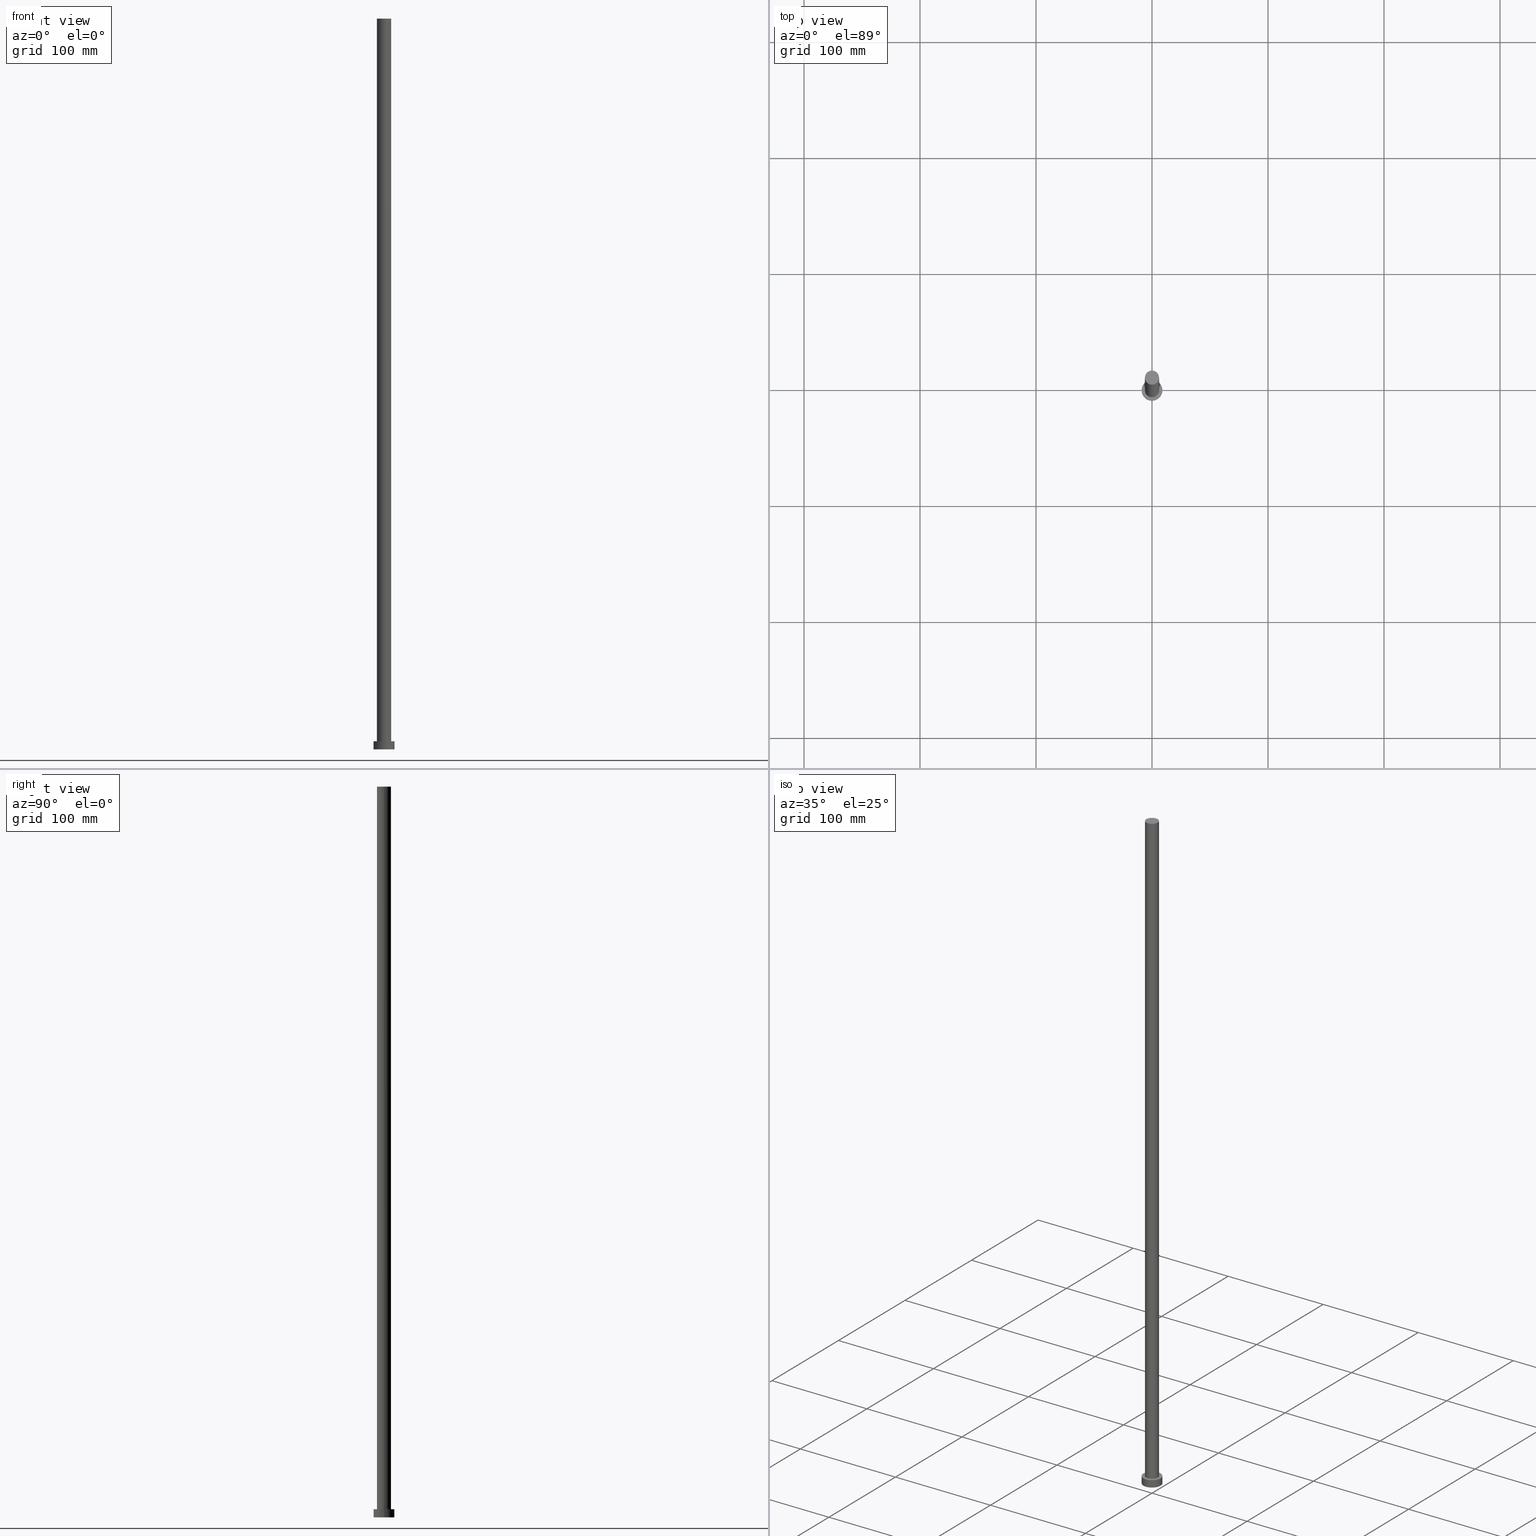
[diagram: canonical four-view strip — front | top / right | iso, engineering-drawing reading convention]
A machine part, canonical four-view strip (front | top / right | iso — engineering-drawing reading convention). The complete STEP part file that produces these views, byte-faithful:
ISO-10303-21;
HEADER;
FILE_DESCRIPTION (( 'STEP AP203' ),
    '1' );
FILE_NAME ('0c5b.STEP',
    '2023-02-13T10:39:40',
    ( '' ),
    ( '' ),
    'SwSTEP 2.0',
    'SolidWorks 2019',
    '' );
FILE_SCHEMA (( 'CONFIG_CONTROL_DESIGN' ));
ENDSEC;

DATA;
#1 = APPROVAL_STATUS ( 'not_yet_approved' ) ;
#2 = CC_DESIGN_APPROVAL ( #65, ( #37 ) ) ;
#3 = FACE_OUTER_BOUND ( 'NONE', #169, .T. ) ;
#4 = DATE_TIME_ROLE ( 'classification_date' ) ;
#5 = VERTEX_POINT ( 'NONE', #72 ) ;
#6 = AXIS2_PLACEMENT_3D ( 'NONE', #235, #14, #92 ) ;
#7 = CC_DESIGN_PERSON_AND_ORGANIZATION_ASSIGNMENT ( #20, #184, ( #109 ) ) ;
#8 =( LENGTH_UNIT ( ) NAMED_UNIT ( * ) SI_UNIT ( .MILLI., .METRE. ) );
#9 = ORIENTED_EDGE ( 'NONE', *, *, #142, .T. ) ;
#10 = CC_DESIGN_PERSON_AND_ORGANIZATION_ASSIGNMENT ( #58, #59, ( #37 ) ) ;
#11 = ORIENTED_EDGE ( 'NONE', *, *, #142, .F. ) ;
#12 = CYLINDRICAL_SURFACE ( 'NONE', #94, 9.000000000000000000 ) ;
#13 = CARTESIAN_POINT ( 'NONE',  ( 0.000000000000000000, 0.000000000000000000, 0.000000000000000000 ) ) ;
#14 = DIRECTION ( 'NONE',  ( 0.000000000000000000, 0.000000000000000000, 1.000000000000000000 ) ) ;
#15 = DIRECTION ( 'NONE',  ( -0.000000000000000000, -0.000000000000000000, -1.000000000000000000 ) ) ;
#16 = FACE_OUTER_BOUND ( 'NONE', #187, .T. ) ;
#17 = DIRECTION ( 'NONE',  ( 1.000000000000000000, 0.000000000000000000, 0.000000000000000000 ) ) ;
#18 = EDGE_CURVE ( 'NONE', #111, #61, #88, .T. ) ;
#19 = PERSON_AND_ORGANIZATION ( #123, #130 ) ;
#20 = PERSON_AND_ORGANIZATION ( #123, #130 ) ;
#21 = PLANE ( 'NONE',  #134 ) ;
#22 = APPROVAL_ROLE ( '' ) ;
#23 = ORIENTED_EDGE ( 'NONE', *, *, #231, .T. ) ;
#24 = EDGE_CURVE ( 'NONE', #61, #111, #52, .T. ) ;
#25 = DATE_TIME_ROLE ( 'creation_date' ) ;
#26 = EDGE_LOOP ( 'NONE', ( #124, #199, #186, #60 ) ) ;
#27 = MECHANICAL_CONTEXT ( 'NONE', #245, 'mechanical' ) ;
#28 =( NAMED_UNIT ( * ) SI_UNIT ( $, .STERADIAN. ) SOLID_ANGLE_UNIT ( ) );
#29 = COORDINATED_UNIVERSAL_TIME_OFFSET ( 1, 0, .AHEAD. ) ;
#30 = AXIS2_PLACEMENT_3D ( 'NONE', #110, #116, #68 ) ;
#31 = CARTESIAN_POINT ( 'NONE',  ( 0.000000000000000000, 0.000000000000000000, 0.000000000000000000 ) ) ;
#32 = EDGE_LOOP ( 'NONE', ( #229, #43, #9, #102 ) ) ;
#33 = ORIENTED_EDGE ( 'NONE', *, *, #77, .T. ) ;
#34 = DIRECTION ( 'NONE',  ( 0.000000000000000000, 0.000000000000000000, 1.000000000000000000 ) ) ;
#35 = LOCAL_TIME ( 11, 39, 40.00000000000000000, #99 ) ;
#36 = PLANE ( 'NONE',  #249 ) ;
#37 = PRODUCT_DEFINITION_FORMATION_WITH_SPECIFIED_SOURCE ( 'LIBOVOLN�', '', #250, .NOT_KNOWN. ) ;
#38 = DATE_AND_TIME ( #79, #35 ) ;
#39 = FACE_OUTER_BOUND ( 'NONE', #246, .T. ) ;
#40 = DIRECTION ( 'NONE',  ( 0.000000000000000000, 0.000000000000000000, 1.000000000000000000 ) ) ;
#41 = APPROVAL ( #212, 'NEUR�EN�' ) ;
#42 = ADVANCED_FACE ( 'NONE', ( #54 ), #220, .T. ) ;
#43 = ORIENTED_EDGE ( 'NONE', *, *, #231, .F. ) ;
#44 = ORIENTED_EDGE ( 'NONE', *, *, #101, .T. ) ;
#45 = APPROVAL_ROLE ( '' ) ;
#46 = PERSON_AND_ORGANIZATION ( #123, #130 ) ;
#47 = PERSON_AND_ORGANIZATION ( #123, #130 ) ;
#48 = APPROVAL_PERSON_ORGANIZATION ( #46, #41, #45 ) ;
#49 = DIRECTION ( 'NONE',  ( -1.000000000000000000, 0.000000000000000000, 0.000000000000000000 ) ) ;
#50 = CARTESIAN_POINT ( 'NONE',  ( 0.000000000000000000, 0.000000000000000000, 630.0000000000000000 ) ) ;
#51 = DIRECTION ( 'NONE',  ( -0.000000000000000000, -0.000000000000000000, -1.000000000000000000 ) ) ;
#52 = CIRCLE ( 'NONE', #80, 6.099999999999999645 ) ;
#53 = ADVANCED_FACE ( 'NONE', ( #173, #157 ), #36, .T. ) ;
#54 = FACE_OUTER_BOUND ( 'NONE', #32, .T. ) ;
#55 = DIRECTION ( 'NONE',  ( -1.000000000000000000, 0.000000000000000000, 0.000000000000000000 ) ) ;
#56 = CIRCLE ( 'NONE', #93, 9.000000000000000000 ) ;
#57 = CYLINDRICAL_SURFACE ( 'NONE', #141, 6.099999999999999645 ) ;
#58 = PERSON_AND_ORGANIZATION ( #123, #130 ) ;
#59 = PERSON_AND_ORGANIZATION_ROLE ( 'creator' ) ;
#60 = ORIENTED_EDGE ( 'NONE', *, *, #70, .F. ) ;
#61 = VERTEX_POINT ( 'NONE', #248 ) ;
#62 = AXIS2_PLACEMENT_3D ( 'NONE', #240, #136, #221 ) ;
#63 = ORIENTED_EDGE ( 'NONE', *, *, #24, .T. ) ;
#64 = APPLICATION_PROTOCOL_DEFINITION ( 'international standard', 'config_control_design', 1994, #81 ) ;
#65 = APPROVAL ( #204, 'NEUR�EN�' ) ;
#66 = CARTESIAN_POINT ( 'NONE',  ( 0.000000000000000000, 0.000000000000000000, 7.000000000000000000 ) ) ;
#67 = AXIS2_PLACEMENT_3D ( 'NONE', #31, #255, #148 ) ;
#68 = DIRECTION ( 'NONE',  ( 1.000000000000000000, 0.000000000000000000, 0.000000000000000000 ) ) ;
#69 = CARTESIAN_POINT ( 'NONE',  ( -6.099999999999999645, 0.000000000000000000, 630.0000000000000000 ) ) ;
#70 = EDGE_CURVE ( 'NONE', #104, #61, #153, .T. ) ;
#71 = LINE ( 'NONE', #237, #209 ) ;
#72 = CARTESIAN_POINT ( 'NONE',  ( 9.000000000000000000, 1.102182119232617714E-15, 0.000000000000000000 ) ) ;
#73 = FACE_OUTER_BOUND ( 'NONE', #131, .T. ) ;
#74 = LINE ( 'NONE', #226, #210 ) ;
#75 = CARTESIAN_POINT ( 'NONE',  ( 6.099999999999999645, 7.470345474798854293E-16, 630.0000000000000000 ) ) ;
#76 = COORDINATED_UNIVERSAL_TIME_OFFSET ( 1, 0, .AHEAD. ) ;
#77 = EDGE_CURVE ( 'NONE', #236, #5, #215, .T. ) ;
#78 = DIRECTION ( 'NONE',  ( 0.000000000000000000, 0.000000000000000000, 1.000000000000000000 ) ) ;
#79 = CALENDAR_DATE ( 2023, 13, 2 ) ;
#80 = AXIS2_PLACEMENT_3D ( 'NONE', #171, #90, #174 ) ;
#81 = APPLICATION_CONTEXT ( 'configuration controlled 3d designs of mechanical parts and assemblies' ) ;
#82 = CARTESIAN_POINT ( 'NONE',  ( 0.000000000000000000, 0.000000000000000000, 0.000000000000000000 ) ) ;
#83 =( NAMED_UNIT ( * ) PLANE_ANGLE_UNIT ( ) SI_UNIT ( $, .RADIAN. ) );
#84 = VERTEX_POINT ( 'NONE', #135 ) ;
#85 = PRODUCT_DEFINITION ( 'NEZN�M�', '', #37, #139 ) ;
#86 = DIRECTION ( 'NONE',  ( -0.000000000000000000, -0.000000000000000000, -1.000000000000000000 ) ) ;
#87 = ORIENTED_EDGE ( 'NONE', *, *, #158, .F. ) ;
#88 = CIRCLE ( 'NONE', #6, 6.099999999999999645 ) ;
#89 = CIRCLE ( 'NONE', #62, 9.000000000000000000 ) ;
#90 = DIRECTION ( 'NONE',  ( 0.000000000000000000, 0.000000000000000000, 1.000000000000000000 ) ) ;
#91 = CARTESIAN_POINT ( 'NONE',  ( -6.099999999999999645, 0.000000000000000000, 630.0000000000000000 ) ) ;
#92 = DIRECTION ( 'NONE',  ( 1.000000000000000000, 0.000000000000000000, 0.000000000000000000 ) ) ;
#93 = AXIS2_PLACEMENT_3D ( 'NONE', #13, #151, #193 ) ;
#94 = AXIS2_PLACEMENT_3D ( 'NONE', #66, #86, #49 ) ;
#95 = CC_DESIGN_APPROVAL ( #177, ( #109 ) ) ;
#96 = EDGE_CURVE ( 'NONE', #5, #84, #172, .T. ) ;
#97 = SECURITY_CLASSIFICATION_LEVEL ( 'unclassified' ) ;
#98 = CARTESIAN_POINT ( 'NONE',  ( 0.000000000000000000, 0.000000000000000000, 0.000000000000000000 ) ) ;
#99 = COORDINATED_UNIVERSAL_TIME_OFFSET ( 1, 0, .AHEAD. ) ;
#100 = EDGE_LOOP ( 'NONE', ( #23, #112 ) ) ;
#101 = EDGE_CURVE ( 'NONE', #211, #104, #113, .T. ) ;
#102 = ORIENTED_EDGE ( 'NONE', *, *, #108, .T. ) ;
#103 = CC_DESIGN_SECURITY_CLASSIFICATION ( #109, ( #37 ) ) ;
#104 = VERTEX_POINT ( 'NONE', #91 ) ;
#105 = DIRECTION ( 'NONE',  ( 1.000000000000000000, 0.000000000000000000, 0.000000000000000000 ) ) ;
#106 = ORIENTED_EDGE ( 'NONE', *, *, #156, .F. ) ;
#107 = CALENDAR_DATE ( 2023, 13, 2 ) ;
#108 = EDGE_CURVE ( 'NONE', #84, #5, #56, .T. ) ;
#109 = SECURITY_CLASSIFICATION ( '', '', #97 ) ;
#110 = CARTESIAN_POINT ( 'NONE',  ( 0.000000000000000000, 0.000000000000000000, 630.0000000000000000 ) ) ;
#111 = VERTEX_POINT ( 'NONE', #133 ) ;
#112 = ORIENTED_EDGE ( 'NONE', *, *, #156, .T. ) ;
#113 = CIRCLE ( 'NONE', #30, 6.099999999999999645 ) ;
#114 = AXIS2_PLACEMENT_3D ( 'NONE', #132, #254, #218 ) ;
#115 = CYLINDRICAL_SURFACE ( 'NONE', #114, 6.099999999999999645 ) ;
#116 = DIRECTION ( 'NONE',  ( 0.000000000000000000, 0.000000000000000000, 1.000000000000000000 ) ) ;
#117 = EDGE_CURVE ( 'NONE', #104, #211, #196, .T. ) ;
#118 = CC_DESIGN_APPROVAL ( #41, ( #85 ) ) ;
#119 = CALENDAR_DATE ( 2023, 13, 2 ) ;
#120 = PLANE ( 'NONE',  #216 ) ;
#121 = ADVANCED_FACE ( 'NONE', ( #178 ), #115, .T. ) ;
#122 = CARTESIAN_POINT ( 'NONE',  ( -9.000000000000000000, 0.000000000000000000, 7.000000000000000000 ) ) ;
#123 = PERSON ( 'NEUR�EN�', 'NEUR�EN�', 'NEUR�EN�', ('NEUR�EN�'), ('NEUR�EN�'), ('NEUR�EN�') ) ;
#124 = ORIENTED_EDGE ( 'NONE', *, *, #101, .F. ) ;
#125 = PRODUCT_RELATED_PRODUCT_CATEGORY ( 'detail', '', ( #250 ) ) ;
#126 = ORIENTED_EDGE ( 'NONE', *, *, #18, .F. ) ;
#127 = PERSON_AND_ORGANIZATION_ROLE ( 'creator' ) ;
#128 = AXIS2_PLACEMENT_3D ( 'NONE', #50, #34, #219 ) ;
#129 = PRODUCT_DEFINITION_SHAPE ( 'NONE', 'NONE',  #85 ) ;
#130 = ORGANIZATION ( 'NEUR�EN�', 'NEUR�EN�', '' ) ;
#131 = EDGE_LOOP ( 'NONE', ( #143, #44 ) ) ;
#132 = CARTESIAN_POINT ( 'NONE',  ( 0.000000000000000000, 0.000000000000000000, 630.0000000000000000 ) ) ;
#133 = CARTESIAN_POINT ( 'NONE',  ( 6.099999999999999645, 7.470345474798854293E-16, 7.000000000000000000 ) ) ;
#134 = AXIS2_PLACEMENT_3D ( 'NONE', #207, #78, #160 ) ;
#135 = CARTESIAN_POINT ( 'NONE',  ( -9.000000000000000000, 0.000000000000000000, 0.000000000000000000 ) ) ;
#136 = DIRECTION ( 'NONE',  ( 0.000000000000000000, 0.000000000000000000, 1.000000000000000000 ) ) ;
#137 = CC_DESIGN_PERSON_AND_ORGANIZATION_ASSIGNMENT ( #247, #167, ( #250 ) ) ;
#138 = MANIFOLD_SOLID_BREP ( 'P�idat vysunut�m3', #168 ) ;
#139 = DESIGN_CONTEXT ( 'detailed design', #81, 'design' ) ;
#140 = CARTESIAN_POINT ( 'NONE',  ( 0.000000000000000000, 0.000000000000000000, 630.0000000000000000 ) ) ;
#141 = AXIS2_PLACEMENT_3D ( 'NONE', #140, #224, #162 ) ;
#142 = EDGE_CURVE ( 'NONE', #197, #84, #71, .T. ) ;
#143 = ORIENTED_EDGE ( 'NONE', *, *, #117, .T. ) ;
#144 = ADVANCED_FACE ( 'NONE', ( #16 ), #12, .T. ) ;
#145 = ORIENTED_EDGE ( 'NONE', *, *, #108, .F. ) ;
#146 = DATE_AND_TIME ( #170, #234 ) ;
#147 = AXIS2_PLACEMENT_3D ( 'NONE', #253, #238, #55 ) ;
#148 = DIRECTION ( 'NONE',  ( 1.000000000000000000, 0.000000000000000000, 0.000000000000000000 ) ) ;
#149 = LOCAL_TIME ( 11, 39, 40.00000000000000000, #29 ) ;
#150 = LOCAL_TIME ( 11, 39, 40.00000000000000000, #166 ) ;
#151 = DIRECTION ( 'NONE',  ( 0.000000000000000000, 0.000000000000000000, 1.000000000000000000 ) ) ;
#152 = CC_DESIGN_DATE_AND_TIME_ASSIGNMENT ( #192, #25, ( #85 ) ) ;
#153 = LINE ( 'NONE', #69, #232 ) ;
#154 = DIRECTION ( 'NONE',  ( 1.000000000000000000, 0.000000000000000000, -0.000000000000000000 ) ) ;
#155 = ADVANCED_FACE ( 'NONE', ( #3 ), #57, .T. ) ;
#156 = EDGE_CURVE ( 'NONE', #236, #197, #179, .T. ) ;
#157 = FACE_OUTER_BOUND ( 'NONE', #100, .T. ) ;
#158 = EDGE_CURVE ( 'NONE', #211, #111, #74, .T. ) ;
#159 = APPROVAL_DATE_TIME ( #38, #65 ) ;
#160 = DIRECTION ( 'NONE',  ( 1.000000000000000000, 0.000000000000000000, -0.000000000000000000 ) ) ;
#161 = CALENDAR_DATE ( 2023, 13, 2 ) ;
#162 = DIRECTION ( 'NONE',  ( -1.000000000000000000, 0.000000000000000000, 0.000000000000000000 ) ) ;
#163 = PERSON_AND_ORGANIZATION ( #123, #130 ) ;
#164 = CC_DESIGN_PERSON_AND_ORGANIZATION_ASSIGNMENT ( #47, #127, ( #85 ) ) ;
#165 = AXIS2_PLACEMENT_3D ( 'NONE', #82, #214, #105 ) ;
#166 = COORDINATED_UNIVERSAL_TIME_OFFSET ( 1, 0, .AHEAD. ) ;
#167 = PERSON_AND_ORGANIZATION_ROLE ( 'design_owner' ) ;
#168 = CLOSED_SHELL ( 'NONE', ( #121, #144, #42, #53, #185, #155, #223 ) ) ;
#169 = EDGE_LOOP ( 'NONE', ( #87, #176, #242, #63 ) ) ;
#170 = CALENDAR_DATE ( 2023, 13, 2 ) ;
#171 = CARTESIAN_POINT ( 'NONE',  ( 0.000000000000000000, 0.000000000000000000, 7.000000000000000000 ) ) ;
#172 = CIRCLE ( 'NONE', #67, 9.000000000000000000 ) ;
#173 = FACE_BOUND ( 'NONE', #228, .T. ) ;
#174 = DIRECTION ( 'NONE',  ( 1.000000000000000000, 0.000000000000000000, 0.000000000000000000 ) ) ;
#175 = SHAPE_DEFINITION_REPRESENTATION ( #129, #213 ) ;
#176 = ORIENTED_EDGE ( 'NONE', *, *, #117, .F. ) ;
#177 = APPROVAL ( #1, 'NEUR�EN�' ) ;
#178 = FACE_OUTER_BOUND ( 'NONE', #26, .T. ) ;
#179 = CIRCLE ( 'NONE', #183, 9.000000000000000000 ) ;
#180 = UNCERTAINTY_MEASURE_WITH_UNIT (LENGTH_MEASURE( 1.000000000000000082E-05 ), #8, 'distance_accuracy_value', 'NONE');
#181 = PERSON_AND_ORGANIZATION ( #123, #130 ) ;
#182 = DIRECTION ( 'NONE',  ( 1.000000000000000000, 0.000000000000000000, -0.000000000000000000 ) ) ;
#183 = AXIS2_PLACEMENT_3D ( 'NONE', #205, #203, #17 ) ;
#184 = PERSON_AND_ORGANIZATION_ROLE ( 'classification_officer' ) ;
#185 = ADVANCED_FACE ( 'NONE', ( #39 ), #120, .F. ) ;
#186 = ORIENTED_EDGE ( 'NONE', *, *, #18, .T. ) ;
#187 = EDGE_LOOP ( 'NONE', ( #106, #33, #189, #11 ) ) ;
#188 = APPROVAL_PERSON_ORGANIZATION ( #181, #65, #22 ) ;
#189 = ORIENTED_EDGE ( 'NONE', *, *, #96, .T. ) ;
#190 = COORDINATED_UNIVERSAL_TIME_OFFSET ( 1, 0, .AHEAD. ) ;
#191 = VECTOR ( 'NONE', #15, 1000.000000000000000 ) ;
#192 = DATE_AND_TIME ( #107, #149 ) ;
#193 = DIRECTION ( 'NONE',  ( 1.000000000000000000, 0.000000000000000000, 0.000000000000000000 ) ) ;
#194 = CC_DESIGN_PERSON_AND_ORGANIZATION_ASSIGNMENT ( #163, #206, ( #37 ) ) ;
#195 = CARTESIAN_POINT ( 'NONE',  ( 0.000000000000000000, 0.000000000000000000, 7.000000000000000000 ) ) ;
#196 = CIRCLE ( 'NONE', #128, 6.099999999999999645 ) ;
#197 = VERTEX_POINT ( 'NONE', #122 ) ;
#198 = APPROVAL_DATE_TIME ( #239, #177 ) ;
#199 = ORIENTED_EDGE ( 'NONE', *, *, #158, .T. ) ;
#200 = DIRECTION ( 'NONE',  ( -0.000000000000000000, -0.000000000000000000, -1.000000000000000000 ) ) ;
#201 = CARTESIAN_POINT ( 'NONE',  ( 9.000000000000000000, 1.102182119232617714E-15, 7.000000000000000000 ) ) ;
#202 = LOCAL_TIME ( 11, 39, 40.00000000000000000, #76 ) ;
#203 = DIRECTION ( 'NONE',  ( 0.000000000000000000, 0.000000000000000000, 1.000000000000000000 ) ) ;
#204 = APPROVAL_STATUS ( 'not_yet_approved' ) ;
#205 = CARTESIAN_POINT ( 'NONE',  ( 0.000000000000000000, 0.000000000000000000, 7.000000000000000000 ) ) ;
#206 = PERSON_AND_ORGANIZATION_ROLE ( 'design_supplier' ) ;
#207 = CARTESIAN_POINT ( 'NONE',  ( 0.000000000000000000, 0.000000000000000000, 630.0000000000000000 ) ) ;
#208 = APPROVAL_ROLE ( '' ) ;
#209 = VECTOR ( 'NONE', #200, 1000.000000000000000 ) ;
#210 = VECTOR ( 'NONE', #225, 1000.000000000000000 ) ;
#211 = VERTEX_POINT ( 'NONE', #75 ) ;
#212 = APPROVAL_STATUS ( 'not_yet_approved' ) ;
#213 = ADVANCED_BREP_SHAPE_REPRESENTATION ( '0c5b', ( #138, #165 ), #241 ) ;
#214 = DIRECTION ( 'NONE',  ( 0.000000000000000000, 0.000000000000000000, 1.000000000000000000 ) ) ;
#215 = LINE ( 'NONE', #233, #191 ) ;
#216 = AXIS2_PLACEMENT_3D ( 'NONE', #98, #40, #182 ) ;
#217 = ORIENTED_EDGE ( 'NONE', *, *, #24, .F. ) ;
#218 = DIRECTION ( 'NONE',  ( -1.000000000000000000, 0.000000000000000000, 0.000000000000000000 ) ) ;
#219 = DIRECTION ( 'NONE',  ( 1.000000000000000000, 0.000000000000000000, 0.000000000000000000 ) ) ;
#220 = CYLINDRICAL_SURFACE ( 'NONE', #147, 9.000000000000000000 ) ;
#221 = DIRECTION ( 'NONE',  ( 1.000000000000000000, 0.000000000000000000, 0.000000000000000000 ) ) ;
#222 = CC_DESIGN_DATE_AND_TIME_ASSIGNMENT ( #227, #4, ( #109 ) ) ;
#223 = ADVANCED_FACE ( 'NONE', ( #73 ), #21, .T. ) ;
#224 = DIRECTION ( 'NONE',  ( -0.000000000000000000, -0.000000000000000000, -1.000000000000000000 ) ) ;
#225 = DIRECTION ( 'NONE',  ( -0.000000000000000000, -0.000000000000000000, -1.000000000000000000 ) ) ;
#226 = CARTESIAN_POINT ( 'NONE',  ( 6.099999999999999645, 7.470345474798854293E-16, 630.0000000000000000 ) ) ;
#227 = DATE_AND_TIME ( #119, #150 ) ;
#228 = EDGE_LOOP ( 'NONE', ( #217, #126 ) ) ;
#229 = ORIENTED_EDGE ( 'NONE', *, *, #77, .F. ) ;
#230 = APPROVAL_DATE_TIME ( #146, #41 ) ;
#231 = EDGE_CURVE ( 'NONE', #197, #236, #89, .T. ) ;
#232 = VECTOR ( 'NONE', #51, 1000.000000000000000 ) ;
#233 = CARTESIAN_POINT ( 'NONE',  ( 9.000000000000000000, 1.102182119232617714E-15, 7.000000000000000000 ) ) ;
#234 = LOCAL_TIME ( 11, 39, 40.00000000000000000, #190 ) ;
#235 = CARTESIAN_POINT ( 'NONE',  ( 0.000000000000000000, 0.000000000000000000, 7.000000000000000000 ) ) ;
#236 = VERTEX_POINT ( 'NONE', #201 ) ;
#237 = CARTESIAN_POINT ( 'NONE',  ( -9.000000000000000000, 0.000000000000000000, 7.000000000000000000 ) ) ;
#238 = DIRECTION ( 'NONE',  ( -0.000000000000000000, -0.000000000000000000, -1.000000000000000000 ) ) ;
#239 = DATE_AND_TIME ( #161, #202 ) ;
#240 = CARTESIAN_POINT ( 'NONE',  ( 0.000000000000000000, 0.000000000000000000, 7.000000000000000000 ) ) ;
#241 =( GEOMETRIC_REPRESENTATION_CONTEXT ( 3 ) GLOBAL_UNCERTAINTY_ASSIGNED_CONTEXT ( ( #180 ) ) GLOBAL_UNIT_ASSIGNED_CONTEXT ( ( #8, #83, #28 ) ) REPRESENTATION_CONTEXT ( 'NONE', 'WORKASPACE' ) );
#242 = ORIENTED_EDGE ( 'NONE', *, *, #70, .T. ) ;
#243 = ORIENTED_EDGE ( 'NONE', *, *, #96, .F. ) ;
#244 = APPLICATION_PROTOCOL_DEFINITION ( 'international standard', 'config_control_design', 1994, #245 ) ;
#245 = APPLICATION_CONTEXT ( 'configuration controlled 3d designs of mechanical parts and assemblies' ) ;
#246 = EDGE_LOOP ( 'NONE', ( #145, #243 ) ) ;
#247 = PERSON_AND_ORGANIZATION ( #123, #130 ) ;
#248 = CARTESIAN_POINT ( 'NONE',  ( -6.099999999999999645, 0.000000000000000000, 7.000000000000000000 ) ) ;
#249 = AXIS2_PLACEMENT_3D ( 'NONE', #195, #251, #154 ) ;
#250 = PRODUCT ( '0c5b', '0c5b', '', ( #27 ) ) ;
#251 = DIRECTION ( 'NONE',  ( 0.000000000000000000, 0.000000000000000000, 1.000000000000000000 ) ) ;
#252 = APPROVAL_PERSON_ORGANIZATION ( #19, #177, #208 ) ;
#253 = CARTESIAN_POINT ( 'NONE',  ( 0.000000000000000000, 0.000000000000000000, 7.000000000000000000 ) ) ;
#254 = DIRECTION ( 'NONE',  ( -0.000000000000000000, -0.000000000000000000, -1.000000000000000000 ) ) ;
#255 = DIRECTION ( 'NONE',  ( 0.000000000000000000, 0.000000000000000000, 1.000000000000000000 ) ) ;
ENDSEC;
END-ISO-10303-21;
